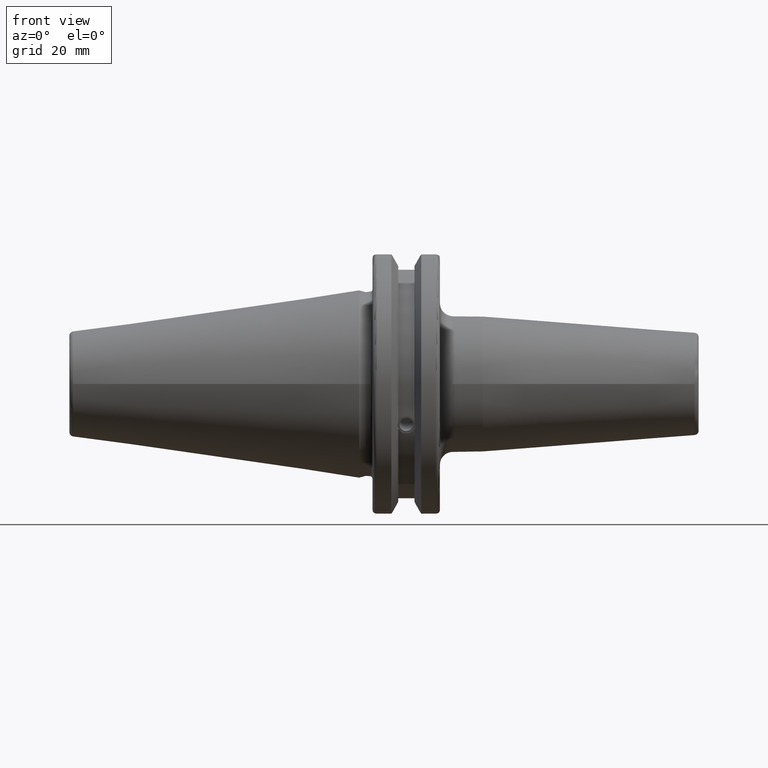
[diagram: clean part render]
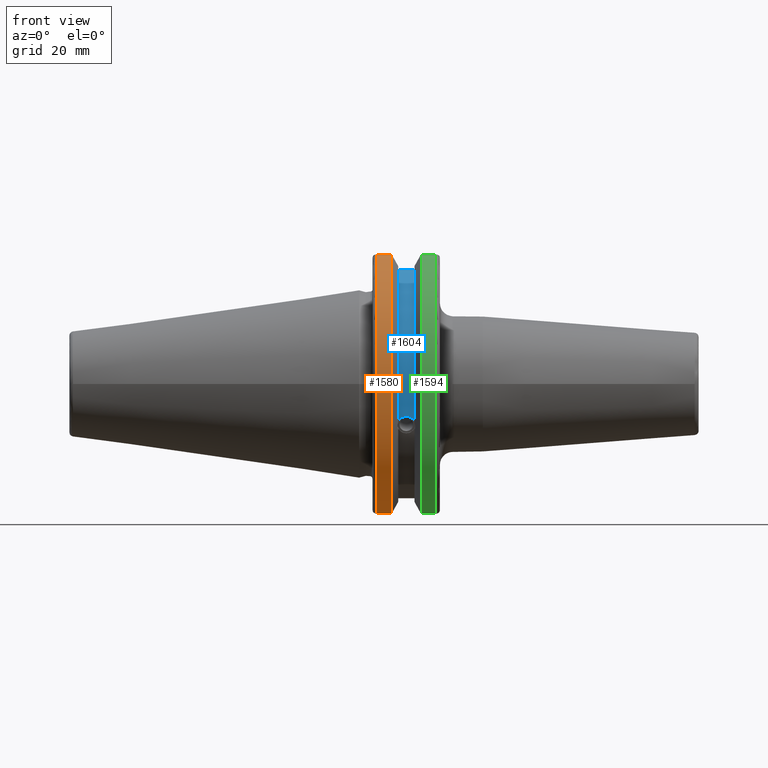
[diagram: same view with three faces highlighted in distinct colors, each labeled with its STEP entity id]
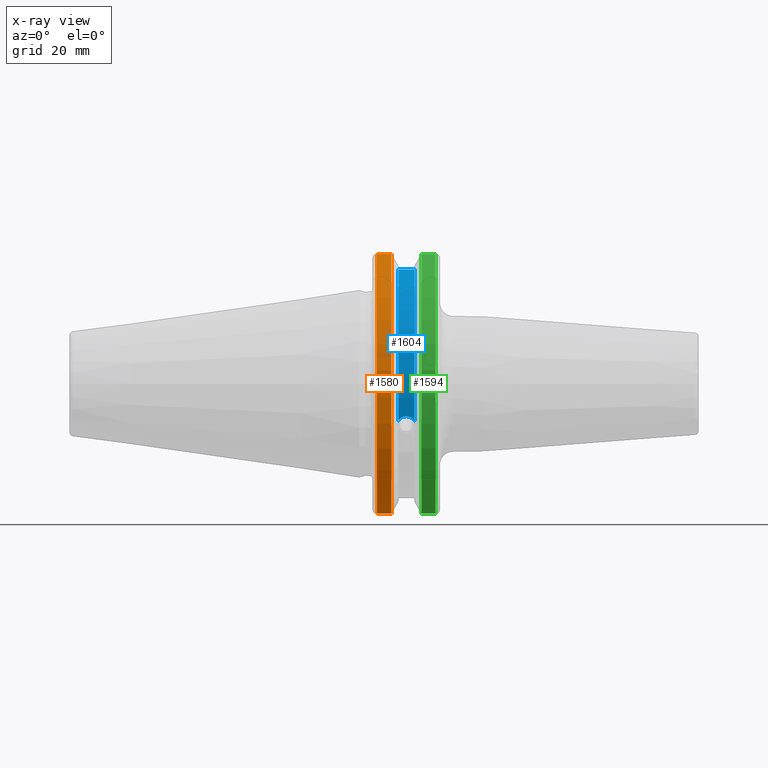
[diagram: x-ray of the same camera — body ghosted, the three highlighted faces saturated]
A machine part, front view with three faces highlighted in distinct colors.
The next image is the same camera in x-ray (body ghosted, the three faces saturated) — at least one of them is partly hidden behind the body in this view.
Their STEP definitions:

[orange] entity #1580 — the highlighted cylindrical surface (partial cylindrical patch) has radius 31.75 mm, axis along (1, 0, 0).
#195=FACE_OUTER_BOUND('',#301,.T.);
#301=EDGE_LOOP('',(#1336,#1337,#1338,#1339));
#394=CIRCLE('',#1768,31.75);
#395=CIRCLE('',#1771,31.75);
#487=LINE('',#2953,#583);
#488=LINE('',#2959,#584);
#583=VECTOR('',#2163,10.);
#584=VECTOR('',#2166,10.);
#760=VERTEX_POINT('',#2932);
#761=VERTEX_POINT('',#2941);
#762=VERTEX_POINT('',#2952);
#763=VERTEX_POINT('',#2958);
#968=EDGE_CURVE('',#760,#761,#394,.T.);
#970=EDGE_CURVE('',#761,#762,#487,.T.);
#972=EDGE_CURVE('',#763,#760,#488,.T.);
#973=EDGE_CURVE('',#762,#763,#395,.T.);
#1336=ORIENTED_EDGE('',*,*,#968,.F.);
#1337=ORIENTED_EDGE('',*,*,#972,.F.);
#1338=ORIENTED_EDGE('',*,*,#973,.F.);
#1339=ORIENTED_EDGE('',*,*,#970,.F.);
#1516=CYLINDRICAL_SURFACE('',#1770,31.75);
#1580=ADVANCED_FACE('',(#195),#1516,.T.);
#1768=AXIS2_PLACEMENT_3D('',#2942,#2159,#2160);
#1770=AXIS2_PLACEMENT_3D('',#2957,#2164,#2165);
#1771=AXIS2_PLACEMENT_3D('',#2960,#2167,#2168);
#2159=DIRECTION('center_axis',(-1.,0.,0.));
#2160=DIRECTION('ref_axis',(0.,-1.,1.60812264967664E-16));
#2163=DIRECTION('',(1.,0.,0.));
#2164=DIRECTION('center_axis',(1.,0.,0.));
#2165=DIRECTION('ref_axis',(0.,-1.,1.22464679914735E-16));
#2166=DIRECTION('',(-1.,0.,0.));
#2167=DIRECTION('center_axis',(1.,0.,0.));
#2168=DIRECTION('ref_axis',(0.,0.,-1.));
#2932=CARTESIAN_POINT('',(4.175,-8.67204822802685,-30.5427254764662));
#2941=CARTESIAN_POINT('',(4.175,-8.67204822802685,30.5427254764662));
#2942=CARTESIAN_POINT('Origin',(4.175,0.,0.));
#2952=CARTESIAN_POINT('',(7.60793323092436,-8.67204822802685,30.5427254764662));
#2953=CARTESIAN_POINT('',(5.39146661546218,-8.67204822802685,30.5427254764662));
#2957=CARTESIAN_POINT('Origin',(5.39146661546218,0.,0.));
#2958=CARTESIAN_POINT('',(7.60793323092436,-8.67204822802685,-30.5427254764662));
#2959=CARTESIAN_POINT('',(5.39146661546218,-8.67204822802685,-30.5427254764662));
#2960=CARTESIAN_POINT('Origin',(7.60793323092436,0.,0.));

[blue] entity #1604 — the highlighted cylindrical surface (partial cylindrical patch) has radius 28.15 mm, axis along (1, 0, 0).
#36=B_SPLINE_CURVE_WITH_KNOTS('',3,(#2500,#2501,#2502,#2503,#2504,#2505,
#2506,#2507,#2508,#2509,#2510,#2511,#2512,#2513),.UNSPECIFIED.,.F.,.F.,
(4,2,2,2,2,2,4),(0.401639126382403,0.474814416953736,0.553950208498303,
0.63308600004287,0.712221791587437,0.791357583132004,0.864532873703336),
 .UNSPECIFIED.);
#219=FACE_OUTER_BOUND('',#326,.T.);
#326=EDGE_LOOP('',(#1441,#1442,#1443,#1444));
#408=CIRCLE('',#1808,28.15);
#409=CIRCLE('',#1809,28.15);
#481=LINE('',#2913,#577);
#577=VECTOR('',#2149,10.);
#672=VERTEX_POINT('',#2497);
#673=VERTEX_POINT('',#2499);
#756=VERTEX_POINT('',#2910);
#757=VERTEX_POINT('',#2912);
#844=EDGE_CURVE('',#673,#672,#36,.T.);
#959=EDGE_CURVE('',#757,#756,#481,.T.);
#1010=EDGE_CURVE('',#757,#672,#408,.T.);
#1011=EDGE_CURVE('',#756,#673,#409,.T.);
#1441=ORIENTED_EDGE('',*,*,#844,.T.);
#1442=ORIENTED_EDGE('',*,*,#1010,.F.);
#1443=ORIENTED_EDGE('',*,*,#959,.T.);
#1444=ORIENTED_EDGE('',*,*,#1011,.T.);
#1522=CYLINDRICAL_SURFACE('',#1807,28.15);
#1604=ADVANCED_FACE('',(#219),#1522,.T.);
#1807=AXIS2_PLACEMENT_3D('',#3061,#2257,#2258);
#1808=AXIS2_PLACEMENT_3D('',#3062,#2259,#2260);
#1809=AXIS2_PLACEMENT_3D('',#3063,#2261,#2262);
#2149=DIRECTION('',(-1.,0.,0.));
#2257=DIRECTION('center_axis',(1.,0.,0.));
#2258=DIRECTION('ref_axis',(0.,-0.887654187951484,0.46051063246378));
#2259=DIRECTION('center_axis',(1.,0.,0.));
#2260=DIRECTION('ref_axis',(0.,0.,-1.));
#2261=DIRECTION('center_axis',(1.,0.,0.));
#2262=DIRECTION('ref_axis',(0.,0.,-1.));
#2497=CARTESIAN_POINT('',(13.0491,-26.734714844398,-8.81348524641211));
#2499=CARTESIAN_POINT('',(9.2191,-26.734714844398,-8.81348524641212));
#2500=CARTESIAN_POINT('Ctrl Pts',(9.2191,-26.734714844398,-8.81348524641212));
#2501=CARTESIAN_POINT('Ctrl Pts',(9.32533057097183,-26.8086519721597,-8.58920529678291));
#2502=CARTESIAN_POINT('Ctrl Pts',(9.47682013770509,-26.8729987454904,-8.38416529997369));
#2503=CARTESIAN_POINT('Ctrl Pts',(9.83557062657411,-26.9778908791383,-8.04056861831091));
#2504=CARTESIAN_POINT('Ctrl Pts',(10.0716450112988,-27.0233016799732,-7.88512567185902));
#2505=CARTESIAN_POINT('Ctrl Pts',(10.5890125426388,-27.0826966800569,-7.6786444840004));
#2506=CARTESIAN_POINT('Ctrl Pts',(10.8703140281848,-27.0968804077294,-7.62768458768512));
#2507=CARTESIAN_POINT('Ctrl Pts',(11.3978859718152,-27.0968804077294,-7.62768458768512));
#2508=CARTESIAN_POINT('Ctrl Pts',(11.6791874573612,-27.0826966800569,-7.6786444840004));
#2509=CARTESIAN_POINT('Ctrl Pts',(12.1965549887012,-27.0233016799732,-7.88512567185902));
#2510=CARTESIAN_POINT('Ctrl Pts',(12.4326293734259,-26.9778908791383,-8.04056861831091));
#2511=CARTESIAN_POINT('Ctrl Pts',(12.7913798622949,-26.8729987454904,-8.38416529997369));
#2512=CARTESIAN_POINT('Ctrl Pts',(12.9428694290282,-26.8086519721597,-8.5892052967829));
#2513=CARTESIAN_POINT('Ctrl Pts',(13.0491,-26.734714844398,-8.81348524641211));
#2910=CARTESIAN_POINT('',(9.2191,-8.19,26.932255754021));
#2912=CARTESIAN_POINT('',(13.0491,-8.19,26.932255754021));
#2913=CARTESIAN_POINT('',(11.1341,-8.19,26.932255754021));
#3061=CARTESIAN_POINT('Origin',(11.1341,0.,0.));
#3062=CARTESIAN_POINT('Origin',(13.0491,0.,0.));
#3063=CARTESIAN_POINT('Origin',(9.2191,0.,0.));

[green] entity #1594 — the highlighted cylindrical surface (partial cylindrical patch) has radius 31.75 mm, axis along (1, 0, 0).
#209=FACE_OUTER_BOUND('',#316,.T.);
#316=EDGE_LOOP('',(#1402,#1403,#1404,#1405));
#367=CIRCLE('',#1704,31.75);
#393=CIRCLE('',#1764,31.75);
#501=LINE('',#3033,#597);
#502=LINE('',#3035,#598);
#597=VECTOR('',#2221,10.);
#598=VECTOR('',#2224,10.);
#686=VERTEX_POINT('',#2585);
#687=VERTEX_POINT('',#2589);
#751=VERTEX_POINT('',#2876);
#752=VERTEX_POINT('',#2885);
#862=EDGE_CURVE('',#687,#686,#367,.T.);
#952=EDGE_CURVE('',#751,#752,#393,.T.);
#998=EDGE_CURVE('',#752,#686,#501,.T.);
#999=EDGE_CURVE('',#687,#751,#502,.T.);
#1402=ORIENTED_EDGE('',*,*,#952,.F.);
#1403=ORIENTED_EDGE('',*,*,#999,.F.);
#1404=ORIENTED_EDGE('',*,*,#862,.T.);
#1405=ORIENTED_EDGE('',*,*,#998,.F.);
#1517=CYLINDRICAL_SURFACE('',#1792,31.75);
#1594=ADVANCED_FACE('',(#209),#1517,.T.);
#1704=AXIS2_PLACEMENT_3D('',#2590,#1988,#1989);
#1764=AXIS2_PLACEMENT_3D('',#2886,#2142,#2143);
#1792=AXIS2_PLACEMENT_3D('',#3034,#2222,#2223);
#1988=DIRECTION('center_axis',(1.,0.,0.));
#1989=DIRECTION('ref_axis',(0.,0.,-1.));
#2142=DIRECTION('center_axis',(1.,0.,0.));
#2143=DIRECTION('ref_axis',(0.,-1.,1.60812264967664E-16));
#2221=DIRECTION('',(-1.,0.,0.));
#2222=DIRECTION('center_axis',(1.,0.,0.));
#2223=DIRECTION('ref_axis',(0.,-1.,1.22464679914735E-16));
#2224=DIRECTION('',(1.,0.,0.));
#2585=CARTESIAN_POINT('',(14.6602667690756,-8.67204822802686,-30.5427254764662));
#2589=CARTESIAN_POINT('',(14.6602667690756,-8.67204822802685,30.5427254764662));
#2590=CARTESIAN_POINT('Origin',(14.6602667690756,0.,0.));
#2876=CARTESIAN_POINT('',(18.05,-8.67204822802685,30.5427254764662));
#2885=CARTESIAN_POINT('',(18.05,-8.67204822802686,-30.5427254764662));
#2886=CARTESIAN_POINT('Origin',(18.05,0.,0.));
#3033=CARTESIAN_POINT('',(16.8551333845378,-8.67204822802686,-30.5427254764662));
#3034=CARTESIAN_POINT('Origin',(16.8551333845378,0.,0.));
#3035=CARTESIAN_POINT('',(16.8551333845378,-8.67204822802685,30.5427254764662));